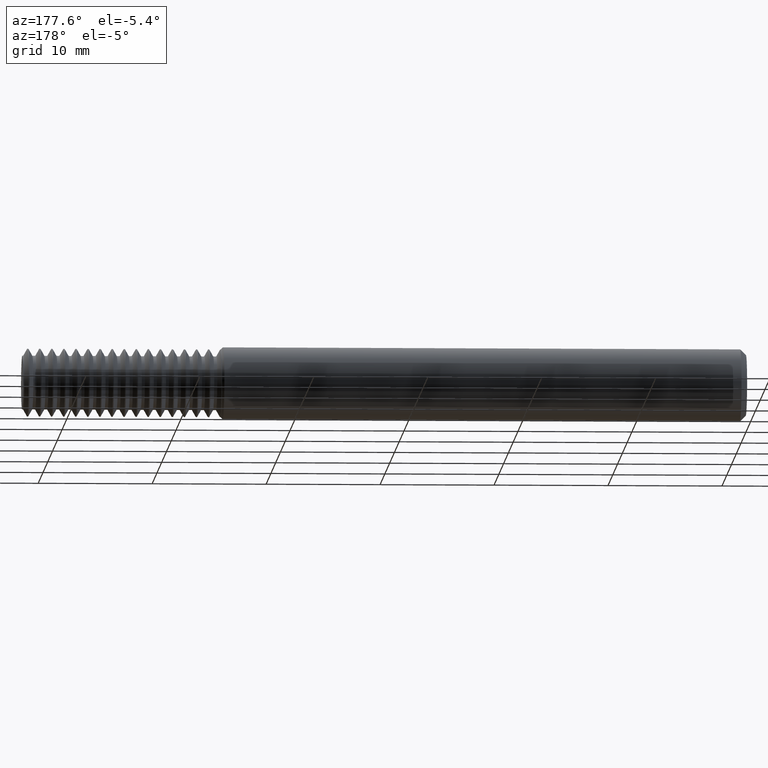
[diagram: clean part render]
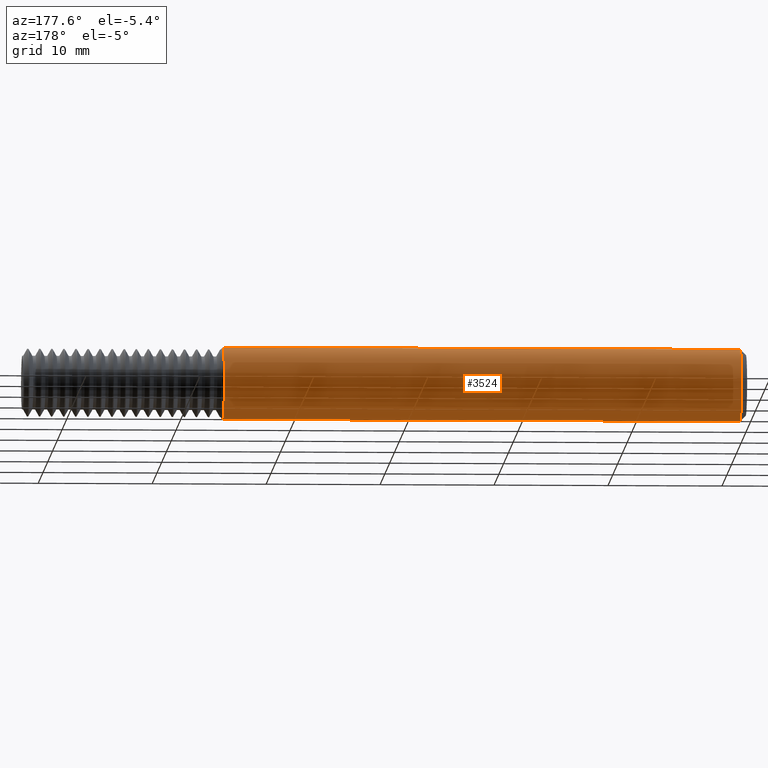
[diagram: same view with one face highlighted and labeled with its STEP entity id]
A machine part, auxiliary view. The second image highlights one B-rep face of the part: STEP entity #3524.
In plain terms, the highlighted cylindrical surface (edge-blend (fillet) strip) has radius 3.1712 mm, axis along (-1, -0, -0).
Its self-contained STEP definition (entity closure, byte-faithful):
#61 = EDGE_LOOP ( 'NONE', ( #2430, #1584, #1463, #1758 ) ) ;
#129 = EDGE_CURVE ( 'NONE', #2151, #1184, #984, .T. ) ;
#221 = CARTESIAN_POINT ( 'NONE',  ( 0.02000000000000005940, 1.528971528735470422E-17, 0.1248500000000000026 ) ) ;
#326 = CARTESIAN_POINT ( 'NONE',  ( 0.000000000000000000, 1.528971528735470422E-17, -0.1248500000000000026 ) ) ;
#523 = DIRECTION ( 'NONE',  ( -1.000000000000000000, -0.000000000000000000, -0.000000000000000000 ) ) ;
#788 = FACE_OUTER_BOUND ( 'NONE', #61, .T. ) ;
#808 = DIRECTION ( 'NONE',  ( -1.000000000000000000, -0.000000000000000000, -0.000000000000000000 ) ) ;
#969 = DIRECTION ( 'NONE',  ( 0.000000000000000000, 0.000000000000000000, -1.000000000000000000 ) ) ;
#984 = CIRCLE ( 'NONE', #3041, 0.1248500000000000026 ) ;
#1037 = LINE ( 'NONE', #3591, #1243 ) ;
#1059 = DIRECTION ( 'NONE',  ( 0.000000000000000000, 0.000000000000000000, 1.000000000000000000 ) ) ;
#1184 = VERTEX_POINT ( 'NONE', #2283 ) ;
#1209 = DIRECTION ( 'NONE',  ( 0.000000000000000000, 0.000000000000000000, 1.000000000000000000 ) ) ;
#1243 = VECTOR ( 'NONE', #523, 39.37007874015748143 ) ;
#1302 = AXIS2_PLACEMENT_3D ( 'NONE', #1793, #2425, #969 ) ;
#1463 = ORIENTED_EDGE ( 'NONE', *, *, #3439, .T. ) ;
#1550 = CARTESIAN_POINT ( 'NONE',  ( 1.806650000000000311, 0.000000000000000000, 0.1248500000000000026 ) ) ;
#1584 = ORIENTED_EDGE ( 'NONE', *, *, #2556, .T. ) ;
#1752 = DIRECTION ( 'NONE',  ( -1.000000000000000000, -0.000000000000000000, -0.000000000000000000 ) ) ;
#1758 = ORIENTED_EDGE ( 'NONE', *, *, #2735, .F. ) ;
#1793 = CARTESIAN_POINT ( 'NONE',  ( 0.02000000000000005940, 0.000000000000000000, 0.000000000000000000 ) ) ;
#1844 = CARTESIAN_POINT ( 'NONE',  ( 1.806650000000000311, 0.000000000000000000, 0.000000000000000000 ) ) ;
#1880 = VERTEX_POINT ( 'NONE', #221 ) ;
#1963 = CARTESIAN_POINT ( 'NONE',  ( 0.000000000000000000, 0.000000000000000000, 0.000000000000000000 ) ) ;
#2029 = LINE ( 'NONE', #326, #3557 ) ;
#2151 = VERTEX_POINT ( 'NONE', #1550 ) ;
#2283 = CARTESIAN_POINT ( 'NONE',  ( 1.806650000000000311, 1.528971528735470422E-17, -0.1248500000000000026 ) ) ;
#2391 = VERTEX_POINT ( 'NONE', #2764 ) ;
#2425 = DIRECTION ( 'NONE',  ( 1.000000000000000000, 0.000000000000000000, 0.000000000000000000 ) ) ;
#2430 = ORIENTED_EDGE ( 'NONE', *, *, #129, .T. ) ;
#2494 = CYLINDRICAL_SURFACE ( 'NONE', #2502, 0.1248500000000000026 ) ;
#2502 = AXIS2_PLACEMENT_3D ( 'NONE', #1963, #808, #1059 ) ;
#2556 = EDGE_CURVE ( 'NONE', #1184, #2391, #2029, .T. ) ;
#2735 = EDGE_CURVE ( 'NONE', #2151, #1880, #1037, .T. ) ;
#2764 = CARTESIAN_POINT ( 'NONE',  ( 0.02000000000000005940, 0.000000000000000000, -0.1248500000000000026 ) ) ;
#3041 = AXIS2_PLACEMENT_3D ( 'NONE', #1844, #3473, #1209 ) ;
#3305 = CIRCLE ( 'NONE', #1302, 0.1248500000000000026 ) ;
#3439 = EDGE_CURVE ( 'NONE', #2391, #1880, #3305, .T. ) ;
#3473 = DIRECTION ( 'NONE',  ( -1.000000000000000000, -0.000000000000000000, -0.000000000000000000 ) ) ;
#3524 = ADVANCED_FACE ( 'NONE', ( #788 ), #2494, .T. ) ;
#3557 = VECTOR ( 'NONE', #1752, 39.37007874015748143 ) ;
#3591 = CARTESIAN_POINT ( 'NONE',  ( 0.000000000000000000, 0.000000000000000000, 0.1248500000000000026 ) ) ;